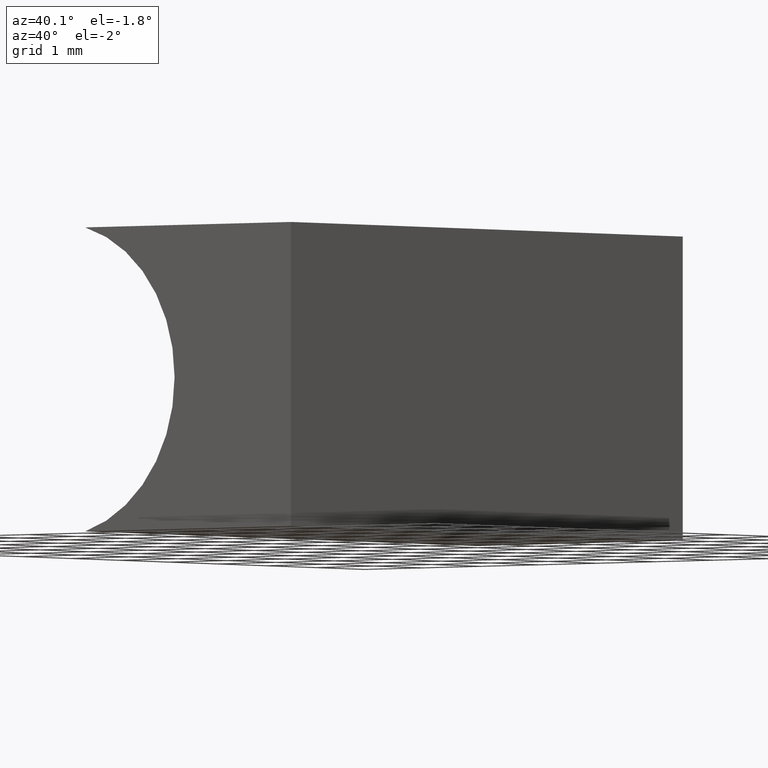
[diagram: clean part render]
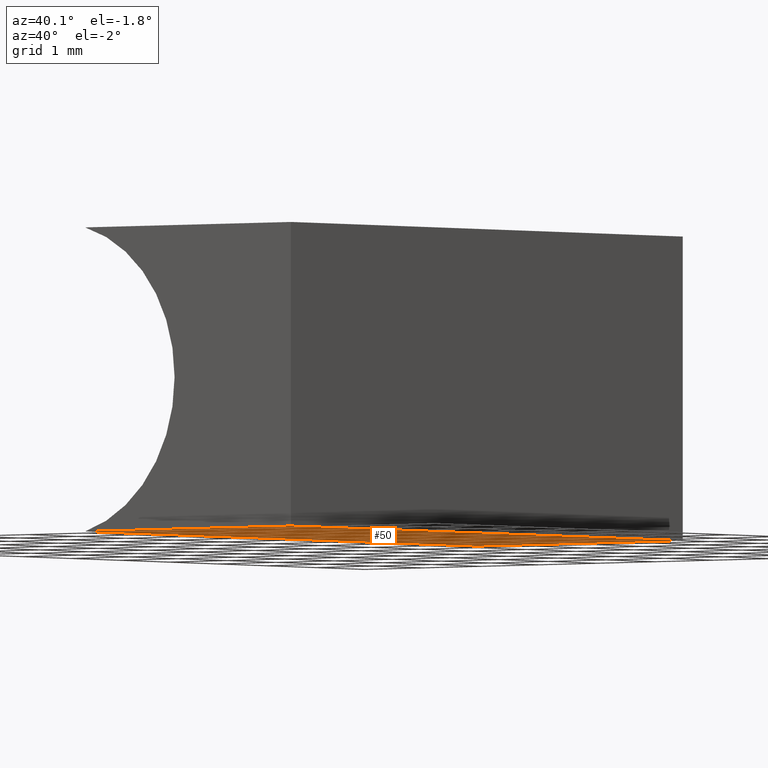
[diagram: same view with one face highlighted and labeled with its STEP entity id]
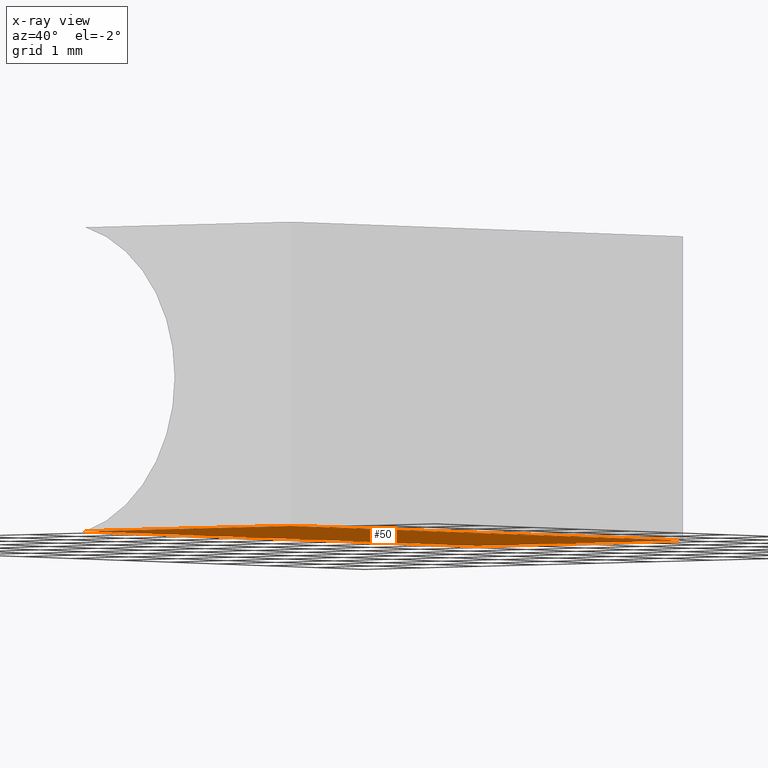
[diagram: x-ray of the same camera — body ghosted, the highlighted face saturated]
A machine part, auxiliary view. The second image highlights one B-rep face of the part: STEP entity #50.
The next image is the same camera in x-ray: the body ghosted, the highlighted face saturated — about 0% of this face is hidden behind the body in this view.
In plain terms, the highlighted planar face has unit normal (0, -0, 1).
Its self-contained STEP definition (entity closure, byte-faithful):
#9 = DIRECTION ( 'NONE',  ( 1.000000000000000000, 0.0000000000000000000, -1.931507277844383500E-016 ) ) ;
#14 = LINE ( 'NONE', #168, #92 ) ;
#18 = ORIENTED_EDGE ( 'NONE', *, *, #200, .F. ) ;
#25 = VECTOR ( 'NONE', #190, 1000.000000000000000 ) ;
#37 = CARTESIAN_POINT ( 'NONE',  ( 0.0000000000000000000, 8.000000000000000000, 0.0000000000000000000 ) ) ;
#39 = DIRECTION ( 'NONE',  ( -1.000000000000000000, 0.0000000000000000000, 1.931507277844383500E-016 ) ) ;
#41 = CARTESIAN_POINT ( 'NONE',  ( 0.0000000000000000000, 8.000000000000000000, 0.0000000000000000000 ) ) ;
#50 = ADVANCED_FACE ( 'NONE', ( #62 ), #105, .F. ) ;
#56 = DIRECTION ( 'NONE',  ( -0.0000000000000000000, -1.000000000000000000, -0.0000000000000000000 ) ) ;
#59 = AXIS2_PLACEMENT_3D ( 'NONE', #41, #121, #9 ) ;
#62 = FACE_OUTER_BOUND ( 'NONE', #160, .T. ) ;
#76 = LINE ( 'NONE', #174, #120 ) ;
#78 = EDGE_CURVE ( 'NONE', #125, #154, #14, .T. ) ;
#79 = LINE ( 'NONE', #116, #25 ) ;
#84 = DIRECTION ( 'NONE',  ( -1.000000000000000000, 0.0000000000000000000, 1.931507277844383500E-016 ) ) ;
#91 = VERTEX_POINT ( 'NONE', #119 ) ;
#92 = VECTOR ( 'NONE', #39, 1000.000000000000000 ) ;
#97 = ORIENTED_EDGE ( 'NONE', *, *, #182, .T. ) ;
#100 = CARTESIAN_POINT ( 'NONE',  ( 0.0000000000000000000, 0.0000000000000000000, 0.0000000000000000000 ) ) ;
#105 = PLANE ( 'NONE',  #59 ) ;
#116 = CARTESIAN_POINT ( 'NONE',  ( -3.536239754196699900, 8.000000000000000000, 8.673617379884035500E-016 ) ) ;
#119 = CARTESIAN_POINT ( 'NONE',  ( -3.536239754196699900, 8.000000000000000000, 8.673617379884035500E-016 ) ) ;
#120 = VECTOR ( 'NONE', #84, 1000.000000000000000 ) ;
#121 = DIRECTION ( 'NONE',  ( 1.931507277844383500E-016, -0.0000000000000000000, 1.000000000000000000 ) ) ;
#125 = VERTEX_POINT ( 'NONE', #100 ) ;
#146 = ORIENTED_EDGE ( 'NONE', *, *, #184, .F. ) ;
#149 = CARTESIAN_POINT ( 'NONE',  ( 0.0000000000000000000, 8.000000000000000000, 0.0000000000000000000 ) ) ;
#151 = VERTEX_POINT ( 'NONE', #37 ) ;
#154 = VERTEX_POINT ( 'NONE', #165 ) ;
#158 = ORIENTED_EDGE ( 'NONE', *, *, #78, .T. ) ;
#159 = VECTOR ( 'NONE', #56, 1000.000000000000000 ) ;
#160 = EDGE_LOOP ( 'NONE', ( #158, #18, #146, #97 ) ) ;
#165 = CARTESIAN_POINT ( 'NONE',  ( -3.536239754196699900, 0.0000000000000000000, 8.673617379884035500E-016 ) ) ;
#168 = CARTESIAN_POINT ( 'NONE',  ( 0.0000000000000000000, 0.0000000000000000000, 0.0000000000000000000 ) ) ;
#174 = CARTESIAN_POINT ( 'NONE',  ( 0.0000000000000000000, 8.000000000000000000, 0.0000000000000000000 ) ) ;
#182 = EDGE_CURVE ( 'NONE', #151, #125, #201, .T. ) ;
#184 = EDGE_CURVE ( 'NONE', #151, #91, #76, .T. ) ;
#190 = DIRECTION ( 'NONE',  ( -0.0000000000000000000, -1.000000000000000000, -0.0000000000000000000 ) ) ;
#200 = EDGE_CURVE ( 'NONE', #91, #154, #79, .T. ) ;
#201 = LINE ( 'NONE', #149, #159 ) ;